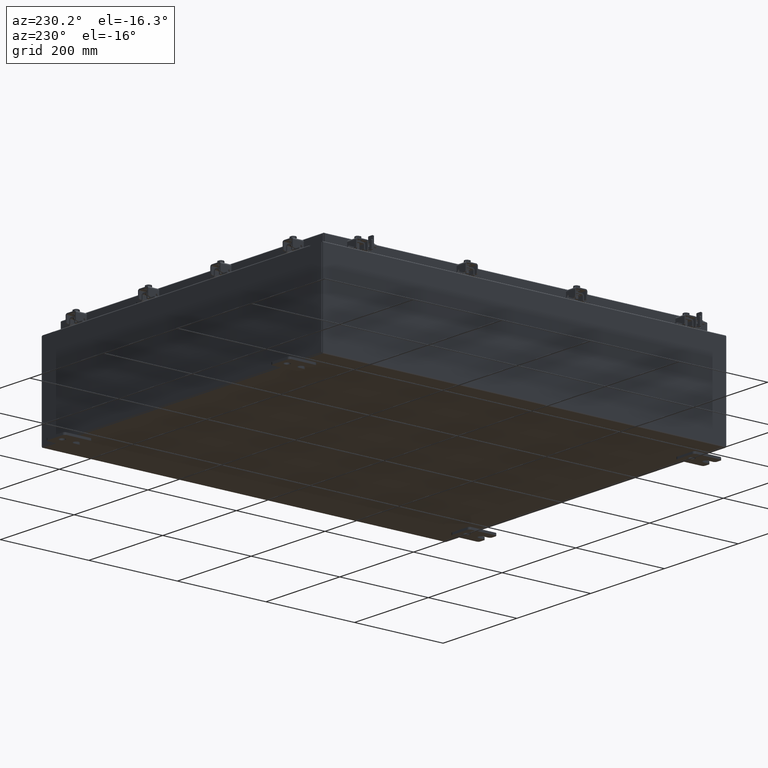
[diagram: clean part render]
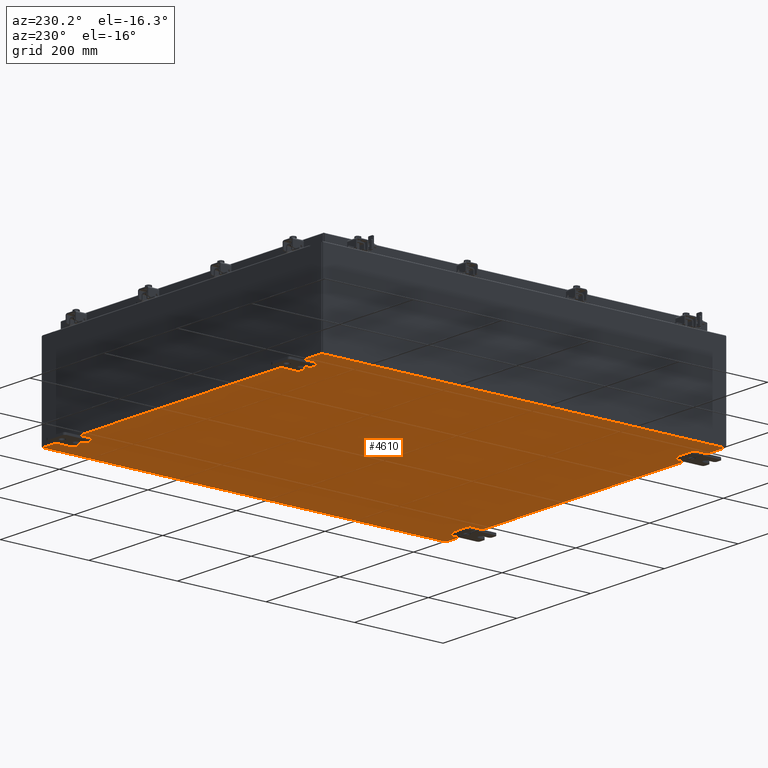
[diagram: same view with one face highlighted and labeled with its STEP entity id]
A machine part, auxiliary view. The second image highlights one B-rep face of the part: STEP entity #4610.
In plain terms, the highlighted planar face has unit normal (0, 0, -1).
Its self-contained STEP definition (entity closure, byte-faithful):
#178 = FACE_OUTER_BOUND ( 'NONE', #8597, .T. ) ;
#2713 = CARTESIAN_POINT ( 'NONE',  ( 14.91229999999999800, -17.92530000000000000, -0.07469999999999998900 ) ) ;
#3237 = EDGE_CURVE ( 'NONE', #18306, #8483, #21713, .T. ) ;
#3629 = ORIENTED_EDGE ( 'NONE', *, *, #19049, .F. ) ;
#3753 = CARTESIAN_POINT ( 'NONE',  ( 14.91229999999999800, 17.92530000000000000, -0.07470000000000251400 ) ) ;
#3799 = EDGE_CURVE ( 'NONE', #18306, #17826, #6222, .T. ) ;
#3805 = DIRECTION ( 'NONE',  ( -0.0000000000000000000, -1.000000000000000000, 8.208677865577646300E-017 ) ) ;
#4610 = ADVANCED_FACE ( 'NONE', ( #178 ), #11618, .T. ) ;
#5207 = CARTESIAN_POINT ( 'NONE',  ( -14.91230000000000200, -17.92530000000000000, -0.07469999999999996100 ) ) ;
#5243 = ORIENTED_EDGE ( 'NONE', *, *, #3799, .T. ) ;
#5315 = LINE ( 'NONE', #5207, #18679 ) ;
#6068 = CARTESIAN_POINT ( 'NONE',  ( -14.91230000000000200, -17.92530000000000000, -0.07469999999999996100 ) ) ;
#6222 = LINE ( 'NONE', #3753, #16031 ) ;
#6761 = LINE ( 'NONE', #22272, #15507 ) ;
#6982 = DIRECTION ( 'NONE',  ( -0.0000000000000000000, 1.000000000000000000, -0.0000000000000000000 ) ) ;
#8203 = EDGE_CURVE ( 'NONE', #15650, #8483, #5315, .T. ) ;
#8330 = AXIS2_PLACEMENT_3D ( 'NONE', #12652, #13000, #13080 ) ;
#8483 = VERTEX_POINT ( 'NONE', #18373 ) ;
#8597 = EDGE_LOOP ( 'NONE', ( #3629, #18258, #13783, #5243 ) ) ;
#11618 = PLANE ( 'NONE',  #8330 ) ;
#12652 = CARTESIAN_POINT ( 'NONE',  ( 0.0000000000000000000, 0.0000000000000000000, -0.07469999999999998900 ) ) ;
#13000 = DIRECTION ( 'NONE',  ( 0.0000000000000000000, 0.0000000000000000000, -1.000000000000000000 ) ) ;
#13080 = DIRECTION ( 'NONE',  ( -1.000000000000000000, 0.0000000000000000000, -0.0000000000000000000 ) ) ;
#13679 = DIRECTION ( 'NONE',  ( 1.000000000000000000, 0.0000000000000000000, 0.0000000000000000000 ) ) ;
#13783 = ORIENTED_EDGE ( 'NONE', *, *, #3237, .F. ) ;
#14125 = DIRECTION ( 'NONE',  ( -1.000000000000000000, -0.0000000000000000000, -0.0000000000000000000 ) ) ;
#14264 = CARTESIAN_POINT ( 'NONE',  ( -15.00000000000000400, 17.92530000000000000, -0.07469999999999998900 ) ) ;
#15507 = VECTOR ( 'NONE', #13679, 39.37007874015748100 ) ;
#15650 = VERTEX_POINT ( 'NONE', #6068 ) ;
#16031 = VECTOR ( 'NONE', #3805, 39.37007874015748100 ) ;
#17151 = VECTOR ( 'NONE', #14125, 39.37007874015748100 ) ;
#17826 = VERTEX_POINT ( 'NONE', #2713 ) ;
#18258 = ORIENTED_EDGE ( 'NONE', *, *, #8203, .T. ) ;
#18306 = VERTEX_POINT ( 'NONE', #21535 ) ;
#18373 = CARTESIAN_POINT ( 'NONE',  ( -14.91230000000000200, 17.92530000000000000, -0.07469999999999998900 ) ) ;
#18679 = VECTOR ( 'NONE', #6982, 39.37007874015748100 ) ;
#19049 = EDGE_CURVE ( 'NONE', #15650, #17826, #6761, .T. ) ;
#21535 = CARTESIAN_POINT ( 'NONE',  ( 14.91229999999999800, 17.92530000000000000, -0.07470000000000251400 ) ) ;
#21713 = LINE ( 'NONE', #14264, #17151 ) ;
#22272 = CARTESIAN_POINT ( 'NONE',  ( -15.00000000000000400, -17.92530000000000000, -0.07469999999999998900 ) ) ;